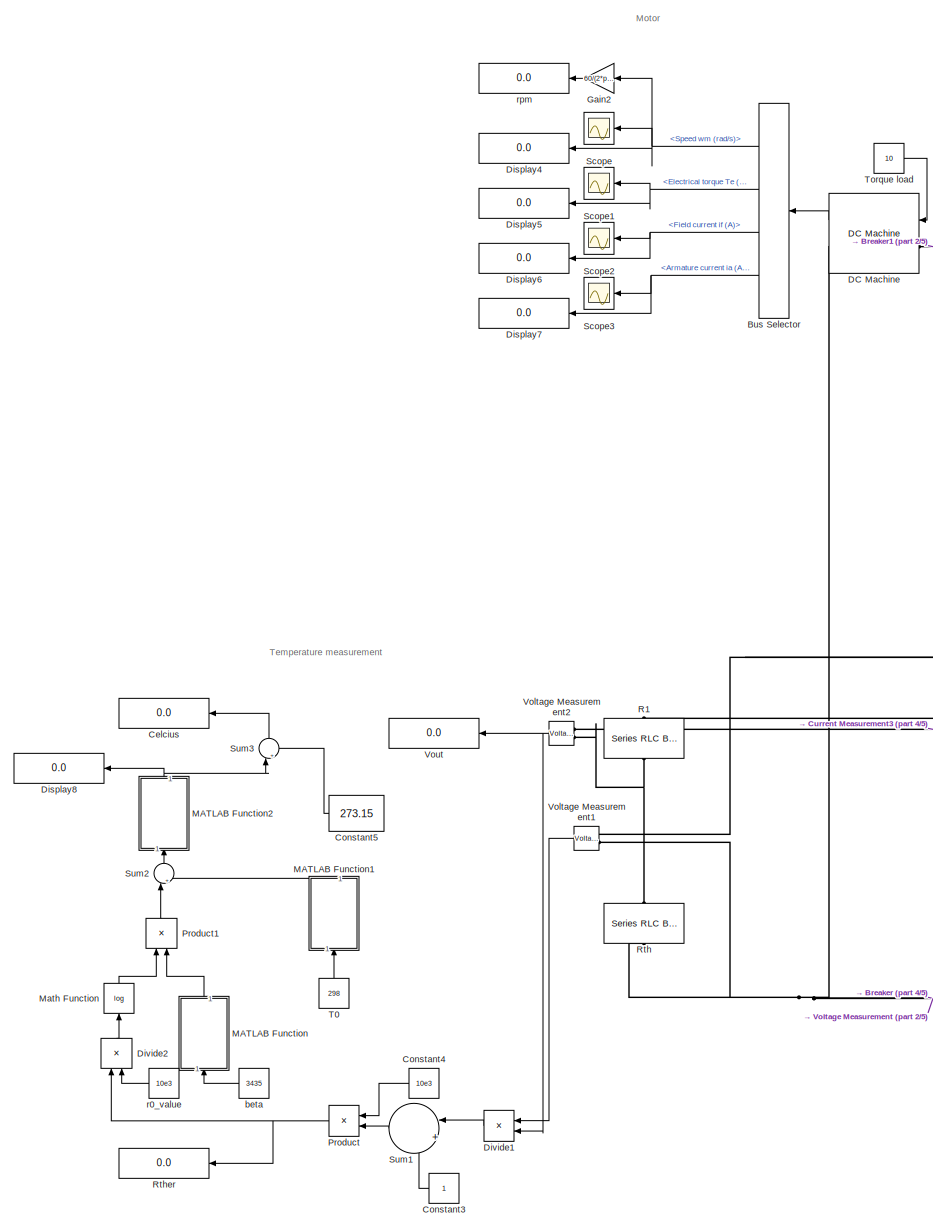
[diagram: root canvas - part 1/5, top left region]
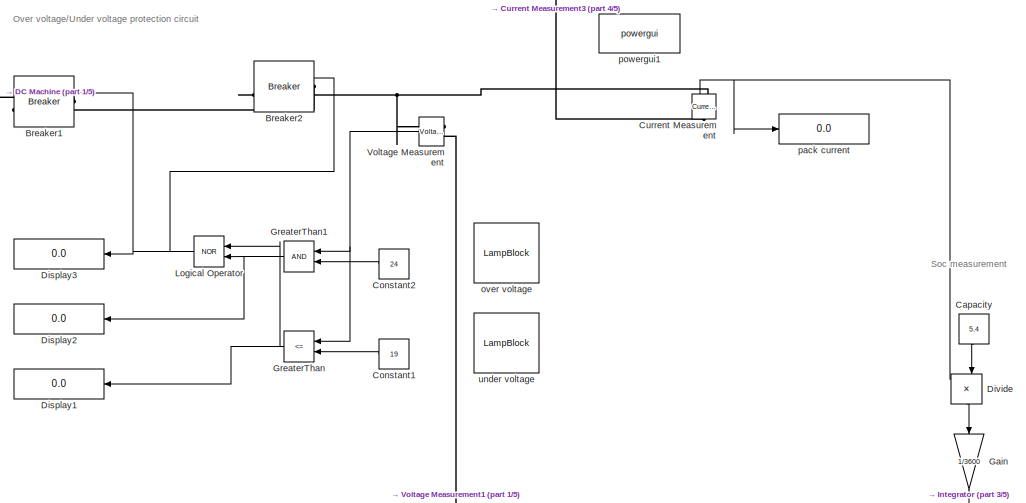
[diagram: root canvas - part 2/5, top right region]
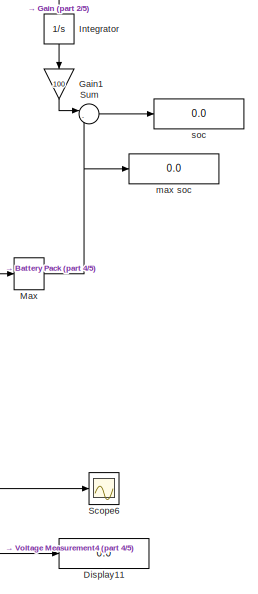
[diagram: root canvas - part 3/5, middle right region]
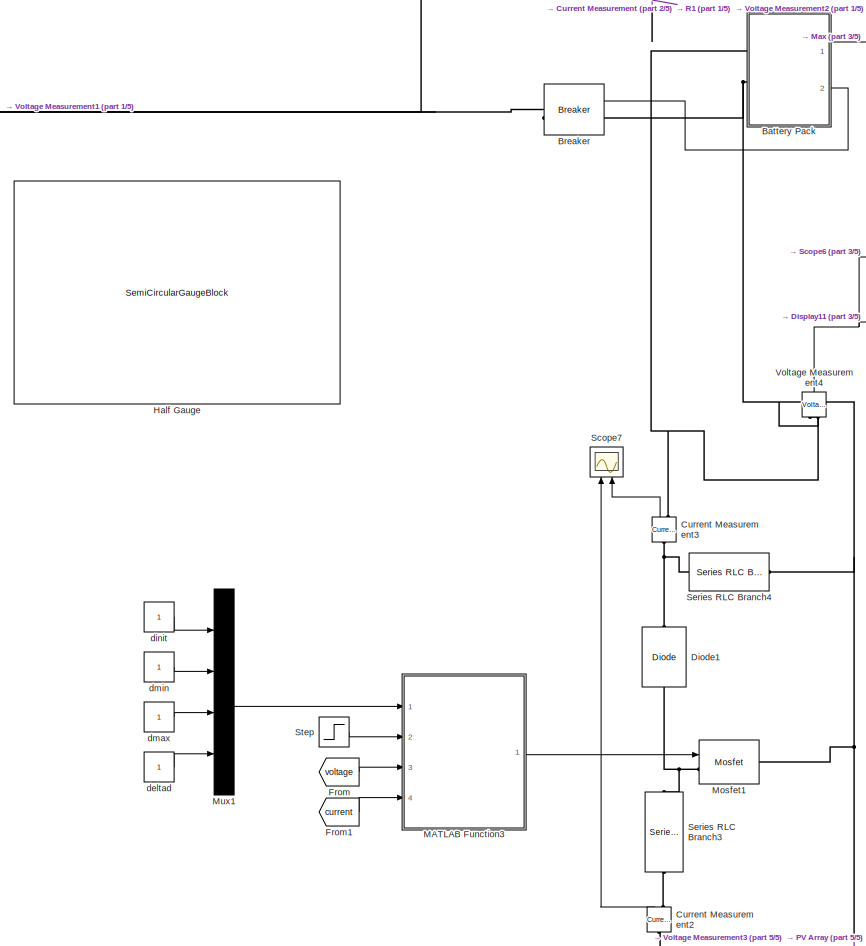
[diagram: root canvas - part 4/5, middle right region]
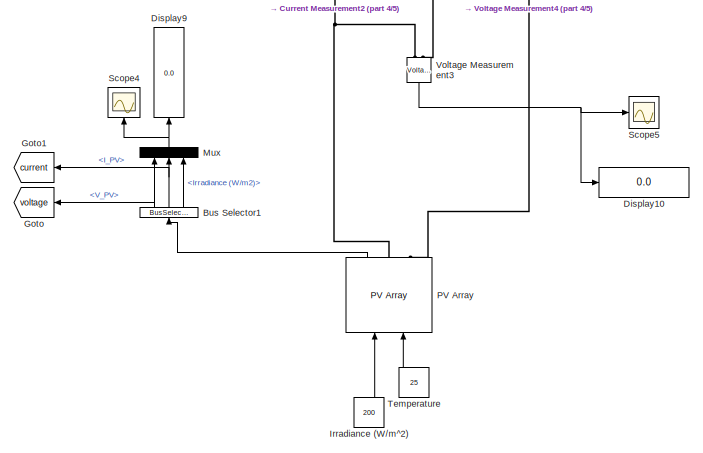
[diagram: root canvas - part 5/5, bottom right region]
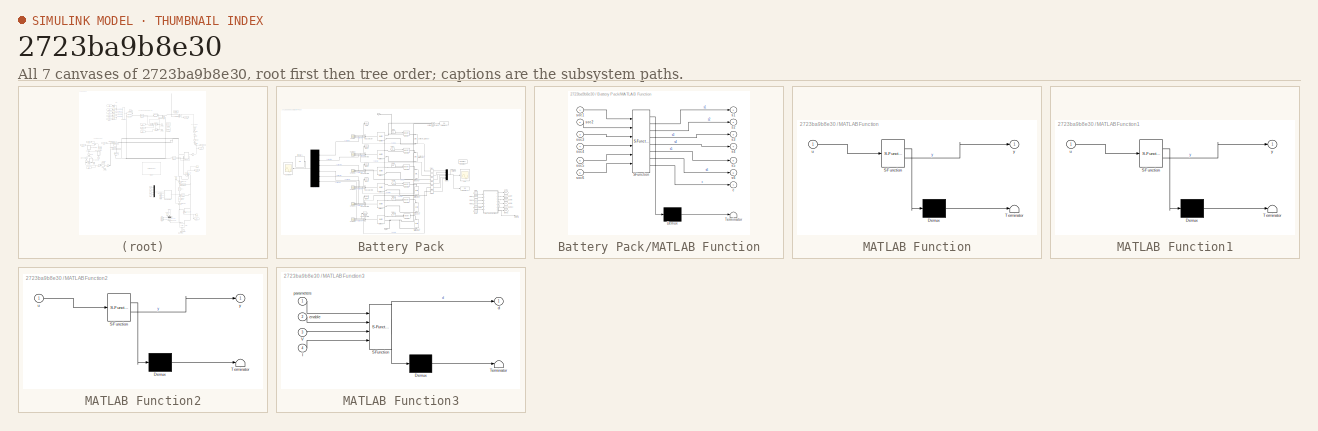
[diagram: thumbnail index - all 7 canvases of the model, root first then tree order]
MODEL slx_2723ba9b8e30
KIND model
CONFIG AbsTol = auto
CONFIG EnableMultiTasking = off
CONFIG FixedStep = auto
CONFIG MaxStep = auto
CONFIG MinStep = auto
CONFIG RelTol = 1e-3
CONFIG SampleTimeConstraint = Unconstrained
CONFIG SolverName = VariableStepAuto
CONFIG StartTime = 0.0
CONFIG StopTime = 3600*5
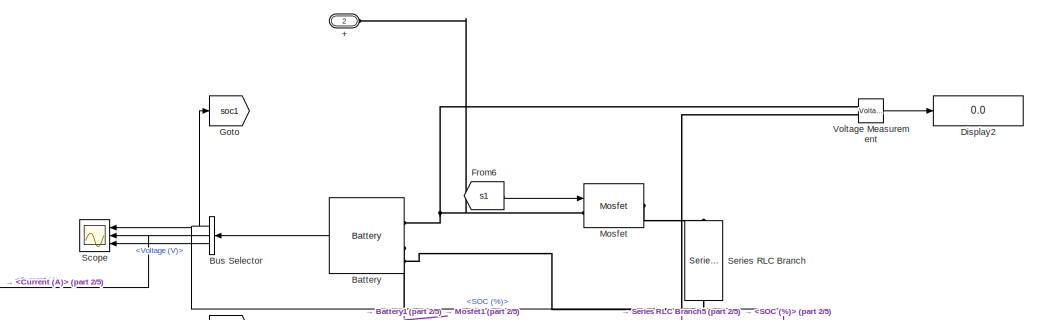
[diagram: Battery Pack - part 1/5, top center region]
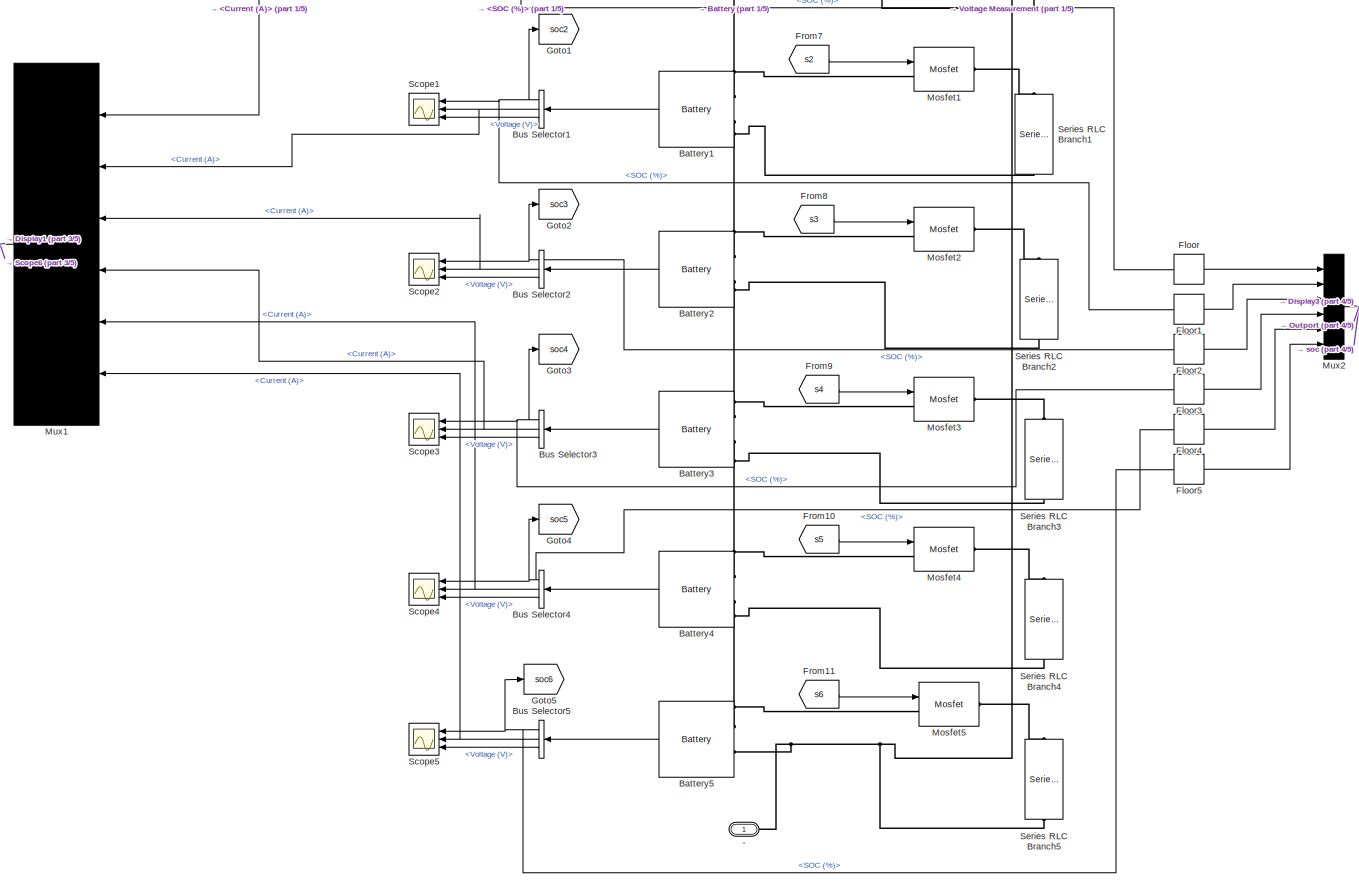
[diagram: Battery Pack - part 2/5, central region]
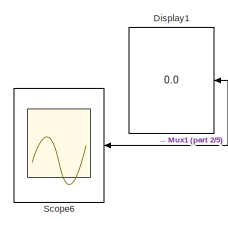
[diagram: Battery Pack - part 3/5, middle left region]
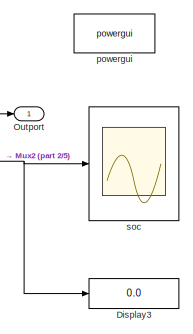
[diagram: Battery Pack - part 4/5, middle right region]
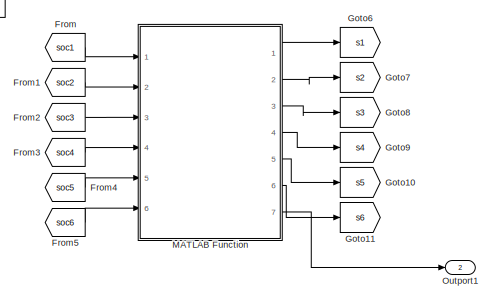
[diagram: Battery Pack - part 5/5, bottom right region]
BLOCK [SubSystem] Battery Pack
  Ports = [0, 2, 0, 0, 0, 2]
  RequestExecContextInheritance = off
BLOCK [PMIOPort] Battery Pack/+
  Port = 2
  Side = Left
BLOCK [PMIOPort] Battery Pack/-
  Side = Left
BLOCK [Reference] Battery Pack/Battery  REF=spsBatteryLib/Battery
  Ports = [0, 1, 0, 0, 0, 2]
  SourceBlock = spsBatteryLib/Battery
  SourceProductBaseCode = PS
  SourceType = Battery
BLOCK [Reference] Battery Pack/Battery1  REF=spsBatteryLib/Battery
  Ports = [0, 1, 0, 0, 0, 2]
  SourceBlock = spsBatteryLib/Battery
  SourceProductBaseCode = PS
  SourceType = Battery
BLOCK [Reference] Battery Pack/Battery2  REF=spsBatteryLib/Battery
  Ports = [0, 1, 0, 0, 0, 2]
  SourceBlock = spsBatteryLib/Battery
  SourceProductBaseCode = PS
  SourceType = Battery
BLOCK [Reference] Battery Pack/Battery3  REF=spsBatteryLib/Battery
  Ports = [0, 1, 0, 0, 0, 2]
  SourceBlock = spsBatteryLib/Battery
  SourceProductBaseCode = PS
  SourceType = Battery
BLOCK [Reference] Battery Pack/Battery4  REF=spsBatteryLib/Battery
  Ports = [0, 1, 0, 0, 0, 2]
  SourceBlock = spsBatteryLib/Battery
  SourceProductBaseCode = PS
  SourceType = Battery
BLOCK [Reference] Battery Pack/Battery5  REF=spsBatteryLib/Battery
  Ports = [0, 1, 0, 0, 0, 2]
  SourceBlock = spsBatteryLib/Battery
  SourceProductBaseCode = PS
  SourceType = Battery
BLOCK [BusSelector] Battery Pack/Bus Selector
  NameLocation = top
  OutputSignals = SOC (%),Current (A),Voltage (V)
  Ports = [1, 3]
BLOCK [BusSelector] Battery Pack/Bus Selector1
  NameLocation = top
  OutputSignals = SOC (%),Current (A),Voltage (V)
  Ports = [1, 3]
BLOCK [BusSelector] Battery Pack/Bus Selector2
  NameLocation = top
  OutputSignals = SOC (%),Current (A),Voltage (V)
  Ports = [1, 3]
BLOCK [BusSelector] Battery Pack/Bus Selector3
  NameLocation = top
  OutputSignals = SOC (%),Current (A),Voltage (V)
  Ports = [1, 3]
BLOCK [BusSelector] Battery Pack/Bus Selector4
  NameLocation = top
  OutputSignals = SOC (%),Current (A),Voltage (V)
  Ports = [1, 3]
BLOCK [BusSelector] Battery Pack/Bus Selector5
  NameLocation = top
  OutputSignals = SOC (%),Current (A),Voltage (V)
  Ports = [1, 3]
BLOCK [Display] Battery Pack/Display1
  Decimation = 1
  NameLocation = top
  Ports = [1]
BLOCK [Display] Battery Pack/Display2
  Decimation = 1
  Ports = [1]
BLOCK [Display] Battery Pack/Display3
  Decimation = 1
  Ports = [1]
BLOCK [Rounding] Battery Pack/Floor
BLOCK [Rounding] Battery Pack/Floor1
BLOCK [Rounding] Battery Pack/Floor2
BLOCK [Rounding] Battery Pack/Floor3
BLOCK [Rounding] Battery Pack/Floor4
BLOCK [Rounding] Battery Pack/Floor5
BLOCK [From] Battery Pack/From
  GotoTag = soc1
  TagVisibility = global
BLOCK [From] Battery Pack/From1
  GotoTag = soc2
BLOCK [From] Battery Pack/From10
  GotoTag = s5
BLOCK [From] Battery Pack/From11
  GotoTag = s6
BLOCK [From] Battery Pack/From2
  GotoTag = soc3
BLOCK [From] Battery Pack/From3
  GotoTag = soc4
BLOCK [From] Battery Pack/From4
  GotoTag = soc5
BLOCK [From] Battery Pack/From5
  GotoTag = soc6
BLOCK [From] Battery Pack/From6
  GotoTag = s1
BLOCK [From] Battery Pack/From7
  GotoTag = s2
BLOCK [From] Battery Pack/From8
  GotoTag = s3
BLOCK [From] Battery Pack/From9
  GotoTag = s4
BLOCK [Goto] Battery Pack/Goto
  GotoTag = soc1
  TagVisibility = global
BLOCK [Goto] Battery Pack/Goto1
  GotoTag = soc2
BLOCK [Goto] Battery Pack/Goto10
  GotoTag = s5
BLOCK [Goto] Battery Pack/Goto11
  GotoTag = s6
BLOCK [Goto] Battery Pack/Goto2
  GotoTag = soc3
BLOCK [Goto] Battery Pack/Goto3
  GotoTag = soc4
BLOCK [Goto] Battery Pack/Goto4
  GotoTag = soc5
BLOCK [Goto] Battery Pack/Goto5
  GotoTag = soc6
BLOCK [Goto] Battery Pack/Goto6
  GotoTag = s1
BLOCK [Goto] Battery Pack/Goto7
  GotoTag = s2
BLOCK [Goto] Battery Pack/Goto8
  GotoTag = s3
BLOCK [Goto] Battery Pack/Goto9
  GotoTag = s4
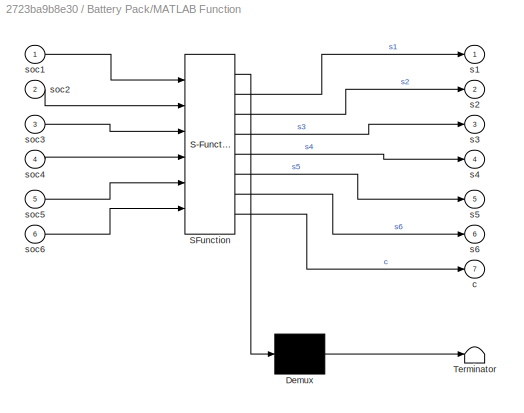
BLOCK [SubSystem] Battery Pack/MATLAB Function
  ErrorFcn = Stateflow.Translate.translate
  PermitHierarchicalResolution = ExplicitOnly
  Ports = [6, 7]
  RequestExecContextInheritance = off
  SFBlockType = MATLAB Function
  TreatAsAtomicUnit = on
BLOCK [Demux] Battery Pack/MATLAB Function/ Demux 
  Outputs = 1
  Ports = [1, 1]
BLOCK [S-Function] Battery Pack/MATLAB Function/ SFunction 
  EnableBusSupport = on
  FunctionName = sf_sfun
  PortCounts = [6 8]
  Ports = [6, 8]
  SFcnIsStateOwnerBlock = off
  SFunctionDeploymentMode = off
  Tag = Stateflow S-Function 2
BLOCK [Terminator] Battery Pack/MATLAB Function/ Terminator 
BLOCK [Outport] Battery Pack/MATLAB Function/c
  Port = 7
BLOCK [Outport] Battery Pack/MATLAB Function/s1
BLOCK [Outport] Battery Pack/MATLAB Function/s2
  Port = 2
BLOCK [Outport] Battery Pack/MATLAB Function/s3
  Port = 3
BLOCK [Outport] Battery Pack/MATLAB Function/s4
  Port = 4
BLOCK [Outport] Battery Pack/MATLAB Function/s5
  Port = 5
BLOCK [Outport] Battery Pack/MATLAB Function/s6
  Port = 6
BLOCK [Inport] Battery Pack/MATLAB Function/soc1
BLOCK [Inport] Battery Pack/MATLAB Function/soc2
  Port = 2
BLOCK [Inport] Battery Pack/MATLAB Function/soc3
  Port = 3
BLOCK [Inport] Battery Pack/MATLAB Function/soc4
  Port = 4
BLOCK [Inport] Battery Pack/MATLAB Function/soc5
  Port = 5
BLOCK [Inport] Battery Pack/MATLAB Function/soc6
  Port = 6
BLOCK [Reference] Battery Pack/Mosfet  REF=spsMosfetLib/Mosfet
  Ports = [1, 0, 0, 0, 0, 1, 1]
  SourceBlock = spsMosfetLib/Mosfet
  SourceProductBaseCode = PS
  SourceType = Mosfet
BLOCK [Reference] Battery Pack/Mosfet1  REF=spsMosfetLib/Mosfet
  Ports = [1, 0, 0, 0, 0, 1, 1]
  SourceBlock = spsMosfetLib/Mosfet
  SourceProductBaseCode = PS
  SourceType = Mosfet
BLOCK [Reference] Battery Pack/Mosfet2  REF=spsMosfetLib/Mosfet
  Ports = [1, 0, 0, 0, 0, 1, 1]
  SourceBlock = spsMosfetLib/Mosfet
  SourceProductBaseCode = PS
  SourceType = Mosfet
BLOCK [Reference] Battery Pack/Mosfet3  REF=spsMosfetLib/Mosfet
  Ports = [1, 0, 0, 0, 0, 1, 1]
  SourceBlock = spsMosfetLib/Mosfet
  SourceProductBaseCode = PS
  SourceType = Mosfet
BLOCK [Reference] Battery Pack/Mosfet4  REF=spsMosfetLib/Mosfet
  Ports = [1, 0, 0, 0, 0, 1, 1]
  SourceBlock = spsMosfetLib/Mosfet
  SourceProductBaseCode = PS
  SourceType = Mosfet
BLOCK [Reference] Battery Pack/Mosfet5  REF=spsMosfetLib/Mosfet
  Ports = [1, 0, 0, 0, 0, 1, 1]
  SourceBlock = spsMosfetLib/Mosfet
  SourceProductBaseCode = PS
  SourceType = Mosfet
BLOCK [Mux] Battery Pack/Mux1
  DisplayOption = bar
  Inputs = 6
  NameLocation = top
  Ports = [6, 1]
BLOCK [Mux] Battery Pack/Mux2
  DisplayOption = bar
  Inputs = 6
  Ports = [6, 1]
BLOCK [Outport] Battery Pack/Outport
BLOCK [Outport] Battery Pack/Outport1
  Port = 2
BLOCK [Scope] Battery Pack/Scope
  Floating = off
  NameLocation = top
  NumInputPorts = 3
  Ports = [3]
  ScopeSpecificationString = Simulink.scopes.TimeScopeBlockCfg('CurrentConfiguration', extmgr.ConfigurationSet(extmgr.Configuration('Core','General UI',true),extmgr.Configuration('Core','Source UI',true),extmgr.Configuration('Sources','WiredSimulink',true),extmgr.Configuration('Visuals','Time Domain',true,'SerializedDisplays',{struct('MinYLimReal','50.96114','MaxYLimReal','70.96114','YLabelReal','','MinYLimMag','50.96114','Ma...<+2670ch>
BLOCK [Scope] Battery Pack/Scope1
  Floating = off
  NameLocation = top
  NumInputPorts = 3
  Ports = [3]
  ScopeSpecificationString = Simulink.scopes.TimeScopeBlockCfg('CurrentConfiguration', extmgr.ConfigurationSet(extmgr.Configuration('Core','General UI',true),extmgr.Configuration('Core','Source UI',true),extmgr.Configuration('Sources','WiredSimulink',true,'DataLoggingVariableName','ScopeData1'),extmgr.Configuration('Visuals','Time Domain',true,'SerializedDisplays',{struct('MinYLimReal','60.68016','MaxYLimReal','63.25776','YLa...<+2690ch>
BLOCK [Scope] Battery Pack/Scope2
  Floating = off
  NameLocation = top
  NumInputPorts = 3
  Ports = [3]
  ScopeSpecificationString = Simulink.scopes.TimeScopeBlockCfg('CurrentConfiguration', extmgr.ConfigurationSet(extmgr.Configuration('Core','General UI',true),extmgr.Configuration('Core','Source UI',true),extmgr.Configuration('Sources','WiredSimulink',true,'DataLoggingVariableName','ScopeData2'),extmgr.Configuration('Visuals','Time Domain',true,'SerializedDisplays',{struct('MinYLimReal','-10','MaxYLimReal','10','YLabelReal',''...<+2771ch>
BLOCK [Scope] Battery Pack/Scope3
  Floating = off
  NameLocation = top
  NumInputPorts = 3
  Ports = [3]
  ScopeSpecificationString = Simulink.scopes.TimeScopeBlockCfg('CurrentConfiguration', extmgr.ConfigurationSet(extmgr.Configuration('Core','General UI',true),extmgr.Configuration('Core','Source UI',true),extmgr.Configuration('Sources','WiredSimulink',true,'DataLoggingVariableName','ScopeData3'),extmgr.Configuration('Visuals','Time Domain',true,'SerializedDisplays',{struct('MinYLimReal','-10','MaxYLimReal','10','YLabelReal',''...<+2771ch>
BLOCK [Scope] Battery Pack/Scope4
  Floating = off
  NameLocation = top
  NumInputPorts = 3
  Ports = [3]
  ScopeSpecificationString = Simulink.scopes.TimeScopeBlockCfg('CurrentConfiguration', extmgr.ConfigurationSet(extmgr.Configuration('Core','General UI',true),extmgr.Configuration('Core','Source UI',true),extmgr.Configuration('Sources','WiredSimulink',true,'DataLoggingVariableName','ScopeData4'),extmgr.Configuration('Visuals','Time Domain',true,'SerializedDisplays',{struct('MinYLimReal','-10','MaxYLimReal','10','YLabelReal',''...<+2771ch>
BLOCK [Scope] Battery Pack/Scope5
  Floating = off
  NameLocation = top
  NumInputPorts = 3
  Ports = [3]
  ScopeSpecificationString = Simulink.scopes.TimeScopeBlockCfg('CurrentConfiguration', extmgr.ConfigurationSet(extmgr.Configuration('Core','General UI',true),extmgr.Configuration('Core','Source UI',true),extmgr.Configuration('Sources','WiredSimulink',true,'DataLoggingVariableName','ScopeData5'),extmgr.Configuration('Visuals','Time Domain',true,'SerializedDisplays',{struct('MinYLimReal','-10','MaxYLimReal','10','YLabelReal',''...<+2771ch>
BLOCK [Scope] Battery Pack/Scope6
  Floating = off
  NameLocation = top
  NumInputPorts = 1
  Ports = [1]
  ScopeSpecificationString = Simulink.scopes.TimeScopeBlockCfg('CurrentConfiguration', extmgr.ConfigurationSet(extmgr.Configuration('Core','General UI',true),extmgr.Configuration('Core','Source UI',true),extmgr.Configuration('Sources','WiredSimulink',true,'DataLoggingVariableName','ScopeData1'),extmgr.Configuration('Visuals','Time Domain',true,'SerializedDisplays',{struct('MinYLimReal','57.62433','MaxYLimReal','66.12254','YLa...<+1579ch>
BLOCK [Reference] Battery Pack/Series RLC Branch  REF=spsSeriesRLCBranchLib/Series RLC Branch
  NameLocation = left
  Ports = [0, 0, 0, 0, 0, 1, 1]
  SourceBlock = spsSeriesRLCBranchLib/Series RLC Branch
  SourceProductBaseCode = PS
  SourceType = Series RLC Branch
BLOCK [Reference] Battery Pack/Series RLC Branch1  REF=spsSeriesRLCBranchLib/Series RLC Branch
  NameLocation = left
  Ports = [0, 0, 0, 0, 0, 1, 1]
  SourceBlock = spsSeriesRLCBranchLib/Series RLC Branch
  SourceProductBaseCode = PS
  SourceType = Series RLC Branch
BLOCK [Reference] Battery Pack/Series RLC Branch2  REF=spsSeriesRLCBranchLib/Series RLC Branch
  NameLocation = left
  Ports = [0, 0, 0, 0, 0, 1, 1]
  SourceBlock = spsSeriesRLCBranchLib/Series RLC Branch
  SourceProductBaseCode = PS
  SourceType = Series RLC Branch
BLOCK [Reference] Battery Pack/Series RLC Branch3  REF=spsSeriesRLCBranchLib/Series RLC Branch
  NameLocation = left
  Ports = [0, 0, 0, 0, 0, 1, 1]
  SourceBlock = spsSeriesRLCBranchLib/Series RLC Branch
  SourceProductBaseCode = PS
  SourceType = Series RLC Branch
BLOCK [Reference] Battery Pack/Series RLC Branch4  REF=spsSeriesRLCBranchLib/Series RLC Branch
  NameLocation = left
  Ports = [0, 0, 0, 0, 0, 1, 1]
  SourceBlock = spsSeriesRLCBranchLib/Series RLC Branch
  SourceProductBaseCode = PS
  SourceType = Series RLC Branch
BLOCK [Reference] Battery Pack/Series RLC Branch5  REF=spsSeriesRLCBranchLib/Series RLC Branch
  NameLocation = left
  Ports = [0, 0, 0, 0, 0, 1, 1]
  SourceBlock = spsSeriesRLCBranchLib/Series RLC Branch
  SourceProductBaseCode = PS
  SourceType = Series RLC Branch
BLOCK [Reference] Battery Pack/Voltage Measurement  REF=spsVoltageMeasurementLib/Voltage Measurement
  Ports = [0, 1, 0, 0, 0, 2]
  SourceBlock = spsVoltageMeasurementLib/Voltage Measurement
  SourceProductBaseCode = PS
  SourceType = Voltage Measurement
  UserDataPersistent = on
BLOCK [Reference] Battery Pack/powergui  REF=spspowerguiLib/powergui
  Ports = []
  Priority = 1
  SourceBlock = spspowerguiLib/powergui
  SourceProductBaseCode = PS
  SourceType = PSB option menu block
BLOCK [Scope] Battery Pack/soc
  Floating = off
  NumInputPorts = 1
  Ports = [1]
  ScopeSpecificationString = Simulink.scopes.TimeScopeBlockCfg('CurrentConfiguration', extmgr.ConfigurationSet(extmgr.Configuration('Core','General UI',true),extmgr.Configuration('Core','Source UI',true),extmgr.Configuration('Sources','WiredSimulink',true,'DataLoggingVariableName','ScopeData7'),extmgr.Configuration('Visuals','Time Domain',true,'SerializedDisplays',{struct('MinYLimReal','61.42761','MaxYLimReal','66.50804','YLa...<+1582ch>
BLOCK [Reference] Breaker  REF=spsBreakerLib/Breaker
  NameLocation = top
  Ports = [1, 0, 0, 0, 0, 1, 1]
  SourceBlock = spsBreakerLib/Breaker
  SourceProductBaseCode = PS
  SourceType = Breaker
BLOCK [Reference] Breaker1  REF=spsBreakerLib/Breaker
  NameLocation = top
  Ports = [1, 0, 0, 0, 0, 1, 1]
  SourceBlock = spsBreakerLib/Breaker
  SourceProductBaseCode = PS
  SourceType = Breaker
BLOCK [Reference] Breaker2  REF=spsBreakerLib/Breaker
  NameLocation = top
  Ports = [1, 0, 0, 0, 0, 1, 1]
  SourceBlock = spsBreakerLib/Breaker
  SourceProductBaseCode = PS
  SourceType = Breaker
BLOCK [BusSelector] Bus Selector
  NameLocation = top
  OutputSignals = Speed wm (rad/s),Electrical torque Te (n m),Field current if (A),Armature current ia (A)
  Ports = [1, 4]
BLOCK [BusSelector] Bus Selector1
  NameLocation = right
  OutputSignals = V_PV,I_PV,Irradiance (W/m2)
  Ports = [1, 3]
BLOCK [Constant] Capacity
  NameLocation = left
  Value = 5.4
BLOCK [Display] Celcius
  Decimation = 1
  Ports = [1]
BLOCK [Constant] Constant1
  NameLocation = top
  Value = 19
BLOCK [Constant] Constant2
  NameLocation = top
  Value = 24
BLOCK [Constant] Constant3
  NameLocation = top
BLOCK [Constant] Constant4
  NameLocation = top
  Value = 10e3
BLOCK [Constant] Constant5
  NameLocation = top
  Value = 273.15
BLOCK [Reference] Current Measurement  REF=spsCurrentMeasurementLib/Current Measurement
  NameLocation = left
  Ports = [0, 1, 0, 0, 0, 1, 1]
  SourceBlock = spsCurrentMeasurementLib/Current Measurement
  SourceProductBaseCode = PS
  SourceType = Current Measurement
  UserDataPersistent = on
BLOCK [Reference] Current Measurement2  REF=spsCurrentMeasurementLib/Current Measurement
  NameLocation = right
  Ports = [0, 1, 0, 0, 0, 1, 1]
  SourceBlock = spsCurrentMeasurementLib/Current Measurement
  SourceProductBaseCode = PS
  SourceType = Current Measurement
  UserDataPersistent = on
BLOCK [Reference] Current Measurement3  REF=spsCurrentMeasurementLib/Current Measurement
  NameLocation = right
  Ports = [0, 1, 0, 0, 0, 1, 1]
  SourceBlock = spsCurrentMeasurementLib/Current Measurement
  SourceProductBaseCode = PS
  SourceType = Current Measurement
  UserDataPersistent = on
BLOCK [Reference] DC Machine  REF=spsDCMachineLib/DC Machine
  Ports = [1, 1, 0, 0, 0, 1, 1]
  SourceBlock = spsDCMachineLib/DC Machine
  SourceProductBaseCode = PS
  SourceType = DC machine
BLOCK [Reference] Diode1  REF=spsDiodeLib/Diode
  NameLocation = right
  Ports = [0, 0, 0, 0, 0, 1, 1]
  SourceBlock = spsDiodeLib/Diode
  SourceProductBaseCode = PS
  SourceType = Diode
BLOCK [Display] Display1
  Decimation = 1
  NameLocation = top
  Ports = [1]
BLOCK [Display] Display10
  Decimation = 1
  Ports = [1]
BLOCK [Display] Display11
  Decimation = 1
  Ports = [1]
BLOCK [Display] Display2
  Decimation = 1
  NameLocation = top
  Ports = [1]
BLOCK [Display] Display3
  Decimation = 1
  NameLocation = top
  Ports = [1]
BLOCK [Display] Display4
  Decimation = 1
  NameLocation = top
  Ports = [1]
BLOCK [Display] Display5
  Decimation = 1
  NameLocation = top
  Ports = [1]
BLOCK [Display] Display6
  Decimation = 1
  NameLocation = top
  Ports = [1]
BLOCK [Display] Display7
  Decimation = 1
  NameLocation = top
  Ports = [1]
BLOCK [Display] Display8
  Decimation = 1
  Ports = [1]
BLOCK [Display] Display9
  Decimation = 1
  NameLocation = right
  Ports = [1]
BLOCK [Product] Divide
  Inputs = */
  NameLocation = left
  Ports = [2, 1]
BLOCK [Product] Divide1
  Inputs = */
  NameLocation = top
  Ports = [2, 1]
BLOCK [Product] Divide2
  Inputs = */
  NameLocation = right
  Ports = [2, 1]
BLOCK [From] From
  GotoTag = voltage
BLOCK [From] From1
  GotoTag = current
BLOCK [Gain] Gain
  Gain = 1/3600
  NameLocation = left
BLOCK [Gain] Gain1
  Gain = 100
  NameLocation = left
BLOCK [Gain] Gain2
  Gain = 60/(2*pi)
  NameLocation = top
BLOCK [Goto] Goto
  GotoTag = voltage
  NameLocation = top
BLOCK [Goto] Goto1
  GotoTag = current
  NameLocation = top
BLOCK [RelationalOperator] GreaterThan
  InputSameDT = off
  NameLocation = top
  Operator = <=
  OutDataTypeStr = boolean
  Ports = [2, 1]
  RndMeth = Simplest
BLOCK [RelationalOperator] GreaterThan1
  InputSameDT = off
  NameLocation = top
  OutDataTypeStr = boolean
  Ports = [2, 1]
  RndMeth = Simplest
BLOCK [SemiCircularGaugeBlock] Half Gauge
BLOCK [Integrator] Integrator
  NameLocation = left
  Ports = [1, 1]
BLOCK [Constant] Irradiance (W//m^2)
  NameLocation = top
  Value = 200
BLOCK [Logic] Logical Operator
  AllPortsSameDT = off
  NameLocation = top
  Operator = NOR
  OutDataTypeStr = boolean
  Ports = [2, 1]
BLOCK [SubSystem] MATLAB Function
  ErrorFcn = Stateflow.Translate.translate
  NameLocation = right
  PermitHierarchicalResolution = ExplicitOnly
  Ports = [1, 1]
  RequestExecContextInheritance = off
  SFBlockType = MATLAB Function
  TreatAsAtomicUnit = on
BLOCK [Demux] MATLAB Function/ Demux 
  Outputs = 1
  Ports = [1, 1]
BLOCK [S-Function] MATLAB Function/ SFunction 
  EnableBusSupport = on
  FunctionName = sf_sfun
  PortCounts = [1 2]
  Ports = [1, 2]
  SFcnIsStateOwnerBlock = off
  SFunctionDeploymentMode = off
  Tag = Stateflow S-Function 1
BLOCK [Terminator] MATLAB Function/ Terminator 
BLOCK [Inport] MATLAB Function/u
BLOCK [Outport] MATLAB Function/y
BLOCK [SubSystem] MATLAB Function1
  ErrorFcn = Stateflow.Translate.translate
  NameLocation = right
  PermitHierarchicalResolution = ExplicitOnly
  Ports = [1, 1]
  RequestExecContextInheritance = off
  SFBlockType = MATLAB Function
  TreatAsAtomicUnit = on
BLOCK [Demux] MATLAB Function1/ Demux 
  Outputs = 1
  Ports = [1, 1]
BLOCK [S-Function] MATLAB Function1/ SFunction 
  EnableBusSupport = on
  FunctionName = sf_sfun
  PortCounts = [1 2]
  Ports = [1, 2]
  SFcnIsStateOwnerBlock = off
  SFunctionDeploymentMode = off
  Tag = Stateflow S-Function 3
BLOCK [Terminator] MATLAB Function1/ Terminator 
BLOCK [Inport] MATLAB Function1/u
BLOCK [Outport] MATLAB Function1/y
BLOCK [SubSystem] MATLAB Function2
  ErrorFcn = Stateflow.Translate.translate
  NameLocation = right
  PermitHierarchicalResolution = ExplicitOnly
  Ports = [1, 1]
  RequestExecContextInheritance = off
  SFBlockType = MATLAB Function
  TreatAsAtomicUnit = on
BLOCK [Demux] MATLAB Function2/ Demux 
  Outputs = 1
  Ports = [1, 1]
BLOCK [S-Function] MATLAB Function2/ SFunction 
  EnableBusSupport = on
  FunctionName = sf_sfun
  PortCounts = [1 2]
  Ports = [1, 2]
  SFcnIsStateOwnerBlock = off
  SFunctionDeploymentMode = off
  Tag = Stateflow S-Function 4
BLOCK [Terminator] MATLAB Function2/ Terminator 
BLOCK [Inport] MATLAB Function2/u
BLOCK [Outport] MATLAB Function2/y
BLOCK [SubSystem] MATLAB Function3
  ErrorFcn = Stateflow.Translate.translate
  PermitHierarchicalResolution = ExplicitOnly
  Ports = [4, 1]
  RequestExecContextInheritance = off
  SFBlockType = MATLAB Function
  TreatAsAtomicUnit = on
BLOCK [Demux] MATLAB Function3/ Demux 
  Outputs = 1
  Ports = [1, 1]
BLOCK [S-Function] MATLAB Function3/ SFunction 
  EnableBusSupport = on
  FunctionName = sf_sfun
  PortCounts = [4 2]
  Ports = [4, 2]
  SFcnIsStateOwnerBlock = off
  SFunctionDeploymentMode = off
  Tag = Stateflow S-Function 5
BLOCK [Terminator] MATLAB Function3/ Terminator 
BLOCK [Inport] MATLAB Function3/I
  Port = 4
BLOCK [Inport] MATLAB Function3/V
  Port = 3
BLOCK [Outport] MATLAB Function3/d
BLOCK [Inport] MATLAB Function3/enable
  Port = 2
BLOCK [Inport] MATLAB Function3/parameters
BLOCK [Math] Math Function
  NameLocation = right
  Operator = log
  Ports = [1, 1]
BLOCK [MinMax] Max
  Function = max
  Ports = [1, 1]
BLOCK [Reference] Mosfet1  REF=spsMosfetLib/Mosfet
  Ports = [1, 0, 0, 0, 0, 1, 1]
  SourceBlock = spsMosfetLib/Mosfet
  SourceProductBaseCode = PS
  SourceType = Mosfet
BLOCK [Mux] Mux
  DisplayOption = bar
  Inputs = 3
  NameLocation = right
  Ports = [3, 1]
BLOCK [Mux] Mux1
  DisplayOption = bar
  Ports = [4, 1]
BLOCK [Reference] PV Array  REF=spsPVArrayLib/PV Array
  NameLocation = right
  Ports = [2, 1, 0, 0, 0, 0, 2]
  SourceBlock = spsPVArrayLib/PV Array
  SourceProductBaseCode = PS
  SourceType = PV array
BLOCK [Product] Product
  NameLocation = top
  Ports = [2, 1]
BLOCK [Product] Product1
  NameLocation = right
  Ports = [2, 1]
BLOCK [Reference] R1  REF=spsSeriesRLCBranchLib/Series RLC Branch
  NameLocation = top
  Ports = [0, 0, 0, 0, 0, 1, 1]
  SourceBlock = spsSeriesRLCBranchLib/Series RLC Branch
  SourceProductBaseCode = PS
  SourceType = Series RLC Branch
BLOCK [Reference] Rth  REF=spsSeriesRLCBranchLib/Series RLC Branch
  NameLocation = top
  Ports = [0, 0, 0, 0, 0, 1, 1]
  SourceBlock = spsSeriesRLCBranchLib/Series RLC Branch
  SourceProductBaseCode = PS
  SourceType = Series RLC Branch
BLOCK [Display] Rther
  Decimation = 1
  Format = long
  NameLocation = top
  Ports = [1]
BLOCK [Scope] Scope
  Floating = off
  NameLocation = top
  NumInputPorts = 1
  Ports = [1]
  ScopeSpecificationString = Simulink.scopes.TimeScopeBlockCfg('CurrentConfiguration', extmgr.ConfigurationSet(extmgr.Configuration('Core','General UI',true),extmgr.Configuration('Core','Source UI',true),extmgr.Configuration('Sources','WiredSimulink',true,'DataLoggingVariableName','ScopeData1'),extmgr.Configuration('Visuals','Time Domain',true,'SerializedDisplays',{struct('MinYLimReal','-2.67095','MaxYLimReal','34.02084','YLa...<+1452ch>
BLOCK [Scope] Scope1
  Floating = off
  NameLocation = top
  NumInputPorts = 1
  Ports = [1]
  ScopeSpecificationString = Simulink.scopes.TimeScopeBlockCfg('CurrentConfiguration', extmgr.ConfigurationSet(extmgr.Configuration('Core','General UI',true),extmgr.Configuration('Core','Source UI',true),extmgr.Configuration('Sources','WiredSimulink',true,'DataLoggingVariableName','ScopeData2'),extmgr.Configuration('Visuals','Time Domain',true),extmgr.Configuration('Tools','Plot Navigation',true),extmgr.Configuration('Tools',...<+40ch>
BLOCK [Scope] Scope2
  Floating = off
  NameLocation = top
  NumInputPorts = 1
  Ports = [1]
  ScopeSpecificationString = Simulink.scopes.TimeScopeBlockCfg('CurrentConfiguration', extmgr.ConfigurationSet(extmgr.Configuration('Core','General UI',true),extmgr.Configuration('Core','Source UI',true),extmgr.Configuration('Sources','WiredSimulink',true,'DataLoggingVariableName','ScopeData3'),extmgr.Configuration('Visuals','Time Domain',true),extmgr.Configuration('Tools','Plot Navigation',true),extmgr.Configuration('Tools',...<+40ch>
BLOCK [Scope] Scope3
  Floating = off
  NameLocation = top
  NumInputPorts = 1
  Ports = [1]
  ScopeSpecificationString = Simulink.scopes.TimeScopeBlockCfg('CurrentConfiguration', extmgr.ConfigurationSet(extmgr.Configuration('Core','General UI',true),extmgr.Configuration('Core','Source UI',true),extmgr.Configuration('Sources','WiredSimulink',true,'DataLoggingVariableName','ScopeData4'),extmgr.Configuration('Visuals','Time Domain',true),extmgr.Configuration('Tools','Plot Navigation',true),extmgr.Configuration('Tools',...<+58ch>
BLOCK [Scope] Scope4
  Floating = off
  NameLocation = right
  NumInputPorts = 1
  Ports = [1]
  ScopeSpecificationString = Simulink.scopes.TimeScopeBlockCfg('CurrentConfiguration', extmgr.ConfigurationSet(extmgr.Configuration('Core','General UI',true),extmgr.Configuration('Core','Source UI',true),extmgr.Configuration('Sources','WiredSimulink',true,'DataLoggingVariableName','ScopeData1'),extmgr.Configuration('Visuals','Time Domain',true),extmgr.Configuration('Tools','Plot Navigation',true),extmgr.Configuration('Tools',...<+40ch>
BLOCK [Scope] Scope5
  Floating = off
  NumInputPorts = 1
  Ports = [1]
  ScopeSpecificationString = Simulink.scopes.TimeScopeBlockCfg('CurrentConfiguration', extmgr.ConfigurationSet(extmgr.Configuration('Core','General UI',true),extmgr.Configuration('Core','Source UI',true),extmgr.Configuration('Sources','WiredSimulink',true,'DataLoggingVariableName','ScopeData2'),extmgr.Configuration('Visuals','Time Domain',true),extmgr.Configuration('Tools','Plot Navigation',true),extmgr.Configuration('Tools',...<+40ch>
BLOCK [Scope] Scope6
  Floating = off
  NumInputPorts = 1
  Ports = [1]
  ScopeSpecificationString = Simulink.scopes.TimeScopeBlockCfg('CurrentConfiguration', extmgr.ConfigurationSet(extmgr.Configuration('Core','General UI',true),extmgr.Configuration('Core','Source UI',true),extmgr.Configuration('Sources','WiredSimulink',true,'DataLoggingVariableName','ScopeData3'),extmgr.Configuration('Visuals','Time Domain',true),extmgr.Configuration('Tools','Plot Navigation',true),extmgr.Configuration('Tools',...<+40ch>
BLOCK [Scope] Scope7
  Floating = off
  NameLocation = right
  NumInputPorts = 2
  Ports = [2]
  ScopeSpecificationString = Simulink.scopes.TimeScopeBlockCfg('CurrentConfiguration', extmgr.ConfigurationSet(extmgr.Configuration('Core','General UI',true),extmgr.Configuration('Core','Source UI',true),extmgr.Configuration('Sources','WiredSimulink',true,'DataLoggingVariableName','ScopeData4'),extmgr.Configuration('Visuals','Time Domain',true,'SerializedDisplays',{struct('MinYLimReal','-10','MaxYLimReal','10','YLabelReal',''...<+2092ch>
BLOCK [Reference] Series RLC Branch3  REF=spsSeriesRLCBranchLib/Series RLC Branch
  NameLocation = right
  Ports = [0, 0, 0, 0, 0, 1, 1]
  SourceBlock = spsSeriesRLCBranchLib/Series RLC Branch
  SourceProductBaseCode = PS
  SourceType = Series RLC Branch
BLOCK [Reference] Series RLC Branch4  REF=spsSeriesRLCBranchLib/Series RLC Branch
  Ports = [0, 0, 0, 0, 0, 1, 1]
  SourceBlock = spsSeriesRLCBranchLib/Series RLC Branch
  SourceProductBaseCode = PS
  SourceType = Series RLC Branch
BLOCK [Step] Step
  SampleTime = 0
  Time = 0.0001
BLOCK [Sum] Sum
  Inputs = |-+
  Ports = [2, 1]
BLOCK [Sum] Sum1
  Inputs = |+-
  NameLocation = top
  Ports = [2, 1]
BLOCK [Sum] Sum2
  Inputs = |++
  NameLocation = right
  Ports = [2, 1]
BLOCK [Sum] Sum3
  Inputs = |+-
  NameLocation = right
  Ports = [2, 1]
BLOCK [Constant] T0
  NameLocation = right
  Value = 298
BLOCK [Constant] Temperature
  NameLocation = right
  Value = 25
BLOCK [Constant] Torque load
  Value = 10
BLOCK [Reference] Voltage Measurement  REF=spsVoltageMeasurementLib/Voltage Measurement
  NameLocation = top
  Ports = [0, 1, 0, 0, 0, 2]
  SourceBlock = spsVoltageMeasurementLib/Voltage Measurement
  SourceProductBaseCode = PS
  SourceType = Voltage Measurement
  UserDataPersistent = on
BLOCK [Reference] Voltage Measurement1  REF=spsVoltageMeasurementLib/Voltage Measurement
  Ports = [0, 1, 0, 0, 0, 2]
  SourceBlock = spsVoltageMeasurementLib/Voltage Measurement
  SourceProductBaseCode = PS
  SourceType = Voltage Measurement
  UserDataPersistent = on
BLOCK [Reference] Voltage Measurement2  REF=spsVoltageMeasurementLib/Voltage Measurement
  Ports = [0, 1, 0, 0, 0, 2]
  SourceBlock = spsVoltageMeasurementLib/Voltage Measurement
  SourceProductBaseCode = PS
  SourceType = Voltage Measurement
  UserDataPersistent = on
BLOCK [Reference] Voltage Measurement3  REF=spsVoltageMeasurementLib/Voltage Measurement
  NameLocation = right
  Ports = [0, 1, 0, 0, 0, 2]
  SourceBlock = spsVoltageMeasurementLib/Voltage Measurement
  SourceProductBaseCode = PS
  SourceType = Voltage Measurement
  UserDataPersistent = on
BLOCK [Reference] Voltage Measurement4  REF=spsVoltageMeasurementLib/Voltage Measurement
  NameLocation = right
  Ports = [0, 1, 0, 0, 0, 2]
  SourceBlock = spsVoltageMeasurementLib/Voltage Measurement
  SourceProductBaseCode = PS
  SourceType = Voltage Measurement
  UserDataPersistent = on
BLOCK [Display] Vout
  Decimation = 1
  Format = long
  Ports = [1]
BLOCK [Constant] beta
  NameLocation = top
  Value = 3435
BLOCK [Constant] deltad
BLOCK [Constant] dinit
BLOCK [Constant] dmax
BLOCK [Constant] dmin
BLOCK [Display] max soc
  Decimation = 1
  Ports = [1]
BLOCK [LampBlock] over voltage
BLOCK [Display] pack current
  Decimation = 1
  Ports = [1]
BLOCK [Reference] powergui1  REF=spspowerguiLib/powergui
  Ports = []
  Priority = 1
  SourceBlock = spspowerguiLib/powergui
  SourceProductBaseCode = PS
  SourceType = PSB option menu block
BLOCK [Constant] r0_value
  NameLocation = top
  Value = 10e3
BLOCK [Display] rpm
  Decimation = 1
  NameLocation = top
  Ports = [1]
BLOCK [Display] soc
  Decimation = 1
  Ports = [1]
BLOCK [LampBlock] under voltage
ANNOTATION (root): Motor
ANNOTATION (root): Over voltage/Under voltage protection circuit
ANNOTATION (root): Soc measurement
ANNOTATION (root): Temperature measurement
LINE Battery Pack/Battery1:1 -> Battery Pack/Bus Selector1:1
LINE Battery Pack/Battery2:1 -> Battery Pack/Bus Selector2:1
LINE Battery Pack/Battery3:1 -> Battery Pack/Bus Selector3:1
LINE Battery Pack/Battery4:1 -> Battery Pack/Bus Selector4:1
LINE Battery Pack/Battery5:1 -> Battery Pack/Bus Selector5:1
LINE Battery Pack/Battery:1 -> Battery Pack/Bus Selector:1
NET Battery Pack/Bus Selector1:1 -> Battery Pack/Floor1:1, Battery Pack/Goto1:1, Battery Pack/Scope1:1
NET Battery Pack/Bus Selector1:2 -> Battery Pack/Mux1:2, Battery Pack/Scope1:2
LINE Battery Pack/Bus Selector1:3 -> Battery Pack/Scope1:3
NET Battery Pack/Bus Selector2:1 -> Battery Pack/Floor2:1, Battery Pack/Goto2:1, Battery Pack/Scope2:1
NET Battery Pack/Bus Selector2:2 -> Battery Pack/Mux1:3, Battery Pack/Scope2:2
LINE Battery Pack/Bus Selector2:3 -> Battery Pack/Scope2:3
NET Battery Pack/Bus Selector3:1 -> Battery Pack/Floor3:1, Battery Pack/Goto3:1, Battery Pack/Scope3:1
NET Battery Pack/Bus Selector3:2 -> Battery Pack/Mux1:4, Battery Pack/Scope3:2
LINE Battery Pack/Bus Selector3:3 -> Battery Pack/Scope3:3
NET Battery Pack/Bus Selector4:1 -> Battery Pack/Floor4:1, Battery Pack/Goto4:1, Battery Pack/Scope4:1
NET Battery Pack/Bus Selector4:2 -> Battery Pack/Mux1:5, Battery Pack/Scope4:2
LINE Battery Pack/Bus Selector4:3 -> Battery Pack/Scope4:3
NET Battery Pack/Bus Selector5:1 -> Battery Pack/Floor5:1, Battery Pack/Goto5:1, Battery Pack/Scope5:1
NET Battery Pack/Bus Selector5:2 -> Battery Pack/Mux1:6, Battery Pack/Scope5:2
LINE Battery Pack/Bus Selector5:3 -> Battery Pack/Scope5:3
NET Battery Pack/Bus Selector:1 -> Battery Pack/Floor:1, Battery Pack/Goto:1, Battery Pack/Scope:1
NET Battery Pack/Bus Selector:2 -> Battery Pack/Mux1:1, Battery Pack/Scope:2
LINE Battery Pack/Bus Selector:3 -> Battery Pack/Scope:3
LINE Battery Pack/Floor1:1 -> Battery Pack/Mux2:2
LINE Battery Pack/Floor2:1 -> Battery Pack/Mux2:3
LINE Battery Pack/Floor3:1 -> Battery Pack/Mux2:4
LINE Battery Pack/Floor4:1 -> Battery Pack/Mux2:5
LINE Battery Pack/Floor5:1 -> Battery Pack/Mux2:6
LINE Battery Pack/Floor:1 -> Battery Pack/Mux2:1
LINE Battery Pack/From10:1 -> Battery Pack/Mosfet4:1
LINE Battery Pack/From11:1 -> Battery Pack/Mosfet5:1
LINE Battery Pack/From1:1 -> Battery Pack/MATLAB Function:2
LINE Battery Pack/From2:1 -> Battery Pack/MATLAB Function:3
LINE Battery Pack/From3:1 -> Battery Pack/MATLAB Function:4
LINE Battery Pack/From4:1 -> Battery Pack/MATLAB Function:5
LINE Battery Pack/From5:1 -> Battery Pack/MATLAB Function:6
LINE Battery Pack/From6:1 -> Battery Pack/Mosfet:1
LINE Battery Pack/From7:1 -> Battery Pack/Mosfet1:1
LINE Battery Pack/From8:1 -> Battery Pack/Mosfet2:1
LINE Battery Pack/From9:1 -> Battery Pack/Mosfet3:1
LINE Battery Pack/From:1 -> Battery Pack/MATLAB Function:1
LINE Battery Pack/MATLAB Function:1 -> Battery Pack/Goto6:1
LINE Battery Pack/MATLAB Function:2 -> Battery Pack/Goto7:1
LINE Battery Pack/MATLAB Function:3 -> Battery Pack/Goto8:1
LINE Battery Pack/MATLAB Function:4 -> Battery Pack/Goto9:1
LINE Battery Pack/MATLAB Function:5 -> Battery Pack/Goto10:1
LINE Battery Pack/MATLAB Function:6 -> Battery Pack/Goto11:1
LINE Battery Pack/MATLAB Function:7 -> Battery Pack/Outport1:1
NET Battery Pack/Mux1:1 -> Battery Pack/Display1:1, Battery Pack/Scope6:1
NET Battery Pack/Mux2:1 -> Battery Pack/Display3:1, Battery Pack/Outport:1, Battery Pack/soc:1
LINE Battery Pack/Voltage Measurement:1 -> Battery Pack/Display2:1
LINE Battery Pack:1 -> Max:1
LINE Battery Pack:2 -> Breaker:1
NET Bus Selector1:1 -> Goto:1, Mux:1
NET Bus Selector1:2 -> Goto1:1, Mux:2
LINE Bus Selector1:3 -> Mux:3
NET Bus Selector:1 -> Display4:1, Gain2:1, Scope:1
NET Bus Selector:2 -> Display5:1, Scope1:1
NET Bus Selector:3 -> Display6:1, Scope2:1
NET Bus Selector:4 -> Display7:1, Scope3:1
LINE Capacity:1 -> Divide:2
LINE Constant1:1 -> GreaterThan:2
LINE Constant2:1 -> GreaterThan1:2
LINE Constant3:1 -> Sum1:2
LINE Constant4:1 -> Product:1
LINE Constant5:1 -> Sum3:2
LINE Current Measurement2:1 -> Scope7:1
LINE Current Measurement3:1 -> Scope7:2
NET Current Measurement:1 -> Divide:1, pack current:1
LINE DC Machine:1 -> Bus Selector:1
LINE Divide1:1 -> Sum1:1
LINE Divide2:1 -> Math Function:1
LINE Divide:1 -> Gain:1
LINE From1:1 -> MATLAB Function3:4
LINE From:1 -> MATLAB Function3:3
LINE Gain1:1 -> Sum:1
LINE Gain2:1 -> rpm:1
LINE Gain:1 -> Integrator:1
NET GreaterThan1:1 -> Display2:1, Logical Operator:2
NET GreaterThan:1 -> Display1:1, Logical Operator:1
LINE Integrator:1 -> Gain1:1
LINE Irradiance (W//m^2):1 -> PV Array:1
NET Logical Operator:1 -> Breaker1:1, Breaker2:1, Display3:1
LINE MATLAB Function1:1 -> Sum2:2
NET MATLAB Function2:1 -> Display8:1, Sum3:1
LINE MATLAB Function3:1 -> Mosfet1:1
LINE MATLAB Function:1 -> Product1:2
LINE Math Function:1 -> Product1:1
NET Max:1 -> Sum:2, max soc:1
LINE Mux1:1 -> MATLAB Function3:1
NET Mux:1 -> Display9:1, Scope4:1
LINE PV Array:1 -> Bus Selector1:1
LINE Product1:1 -> Sum2:1
NET Product:1 -> Divide2:1, Rther:1
LINE Step:1 -> MATLAB Function3:2
LINE Sum1:1 -> Product:2
LINE Sum2:1 -> MATLAB Function2:1
LINE Sum3:1 -> Celcius:1
LINE Sum:1 -> soc:1
LINE T0:1 -> MATLAB Function1:1
LINE Temperature:1 -> PV Array:2
LINE Torque load:1 -> DC Machine:1
LINE Voltage Measurement1:1 -> Divide1:1
NET Voltage Measurement2:1 -> Divide1:2, Vout:1
NET Voltage Measurement3:1 -> Display10:1, Scope5:1
NET Voltage Measurement4:1 -> Display11:1, Scope6:1
NET Voltage Measurement:1 -> GreaterThan1:1, GreaterThan:1
LINE beta:1 -> MATLAB Function:1
LINE deltad:1 -> Mux1:4
LINE dinit:1 -> Mux1:1
LINE dmax:1 -> Mux1:3
LINE dmin:1 -> Mux1:2
LINE r0_value:1 -> Divide2:2
PNET net1: Battery Pack/+:RConn1 -- Battery Pack/Battery:LConn1 -- Battery Pack/Mosfet:LConn1 -- Battery Pack/Voltage Measurement:LConn1
PNET net2: Battery Pack/-:RConn1 -- Battery Pack/Battery5:LConn2 -- Battery Pack/Series RLC Branch5:RConn1 -- Battery Pack/Voltage Measurement:LConn2
PNET net3: Battery Pack/Battery1:LConn1 -- Battery Pack/Battery:LConn2 -- Battery Pack/Mosfet1:LConn1 -- Battery Pack/Series RLC Branch:RConn1
PNET net4: Battery Pack/Battery1:LConn2 -- Battery Pack/Battery2:LConn1 -- Battery Pack/Mosfet2:LConn1 -- Battery Pack/Series RLC Branch1:RConn1
PNET net5: Battery Pack/Battery2:LConn2 -- Battery Pack/Battery3:LConn1 -- Battery Pack/Mosfet3:LConn1 -- Battery Pack/Series RLC Branch2:RConn1
PNET net6: Battery Pack/Battery3:LConn2 -- Battery Pack/Battery4:LConn1 -- Battery Pack/Mosfet4:LConn1 -- Battery Pack/Series RLC Branch3:RConn1
PNET net7: Battery Pack/Battery4:LConn2 -- Battery Pack/Battery5:LConn1 -- Battery Pack/Mosfet5:LConn1 -- Battery Pack/Series RLC Branch4:RConn1
PLINE Battery Pack/Mosfet1:RConn1 -- Battery Pack/Series RLC Branch1:LConn1
PLINE Battery Pack/Mosfet2:RConn1 -- Battery Pack/Series RLC Branch2:LConn1
PLINE Battery Pack/Mosfet3:RConn1 -- Battery Pack/Series RLC Branch3:LConn1
PLINE Battery Pack/Mosfet4:RConn1 -- Battery Pack/Series RLC Branch4:LConn1
PLINE Battery Pack/Mosfet5:RConn1 -- Battery Pack/Series RLC Branch5:LConn1
PLINE Battery Pack/Mosfet:RConn1 -- Battery Pack/Series RLC Branch:LConn1
PNET net8: Battery Pack:LConn1 -- Current Measurement3:RConn1 -- Current Measurement:LConn1 -- R1:LConn1 -- Voltage Measurement1:LConn1 -- Voltage Measurement2:LConn1 -- Voltage Measurement4:LConn1
PNET net9: Battery Pack:LConn2 -- Breaker:LConn1 -- Mosfet1:RConn1 -- PV Array:RConn2 -- Series RLC Branch4:RConn1 -- Voltage Measurement3:LConn2 -- Voltage Measurement4:LConn2
PLINE Breaker1:LConn1 -- Breaker2:RConn1
PLINE Breaker1:RConn1 -- DC Machine:LConn1
PNET net10: Breaker2:LConn1 -- Current Measurement:RConn1 -- Voltage Measurement:LConn1
PNET net11: Breaker:RConn1 -- DC Machine:RConn1 -- Rth:RConn1 -- Voltage Measurement1:LConn2 -- Voltage Measurement:LConn2
PNET net12: Current Measurement2:LConn1 -- PV Array:RConn1 -- Voltage Measurement3:LConn1
PLINE Current Measurement2:RConn1 -- Series RLC Branch3:LConn1
PNET net13: Current Measurement3:LConn1 -- Diode1:RConn1 -- Series RLC Branch4:LConn1
PNET net14: Diode1:LConn1 -- Mosfet1:LConn1 -- Series RLC Branch3:RConn1
PNET net15: R1:RConn1 -- Rth:LConn1 -- Voltage Measurement2:LConn2
note: NET lines group one-source signal fan-out (src -> all destinations, sorted); 1:1 wires keep LINE; PNET lines group multi-terminal physical nets as a canonical sorted terminal list (undirected conserving connections); 2-terminal nets keep the pairwise PLINE form
CHART MATLAB Function states=1 transitions=1
  STATE_LABEL 'eML_blk_kernel()'
  STATE_LABEL 'SCRIPT:\nfunction y = fcn(u)\n\ny = (1/u);\n'
CHART Battery Pack/MATLAB Function states=1 transitions=1
  STATE_LABEL 'eML_blk_kernel()'
  STATE_LABEL 'SCRIPT:\nfunction [s1,s2,s3,s4,s5,s6,c] = fcn(soc1, soc2, soc3, soc4, soc5, soc6)\nsoc1=int32(soc1);\nsoc2=int32(soc2);\nsoc3=int32(soc3);\nsoc4=int32(soc4);\nsoc5=int32(soc5);\nsoc6=int32(soc6);\nif((soc1>soc2)||(soc1>soc3)||(soc1>soc4)||(soc1>soc5)||(soc1>soc6))\n    s1=1;\nelse\n    s1=0;\nend\nif((soc2>soc1)||(soc2>soc3)||(soc2>soc4)||(soc2>soc5)||(soc2>soc6))\n    s2=1;\nelse\n    s2=0;\nend\nif((soc3>soc1)||(...<+498ch>'
CHART MATLAB Function1 states=1 transitions=1
  STATE_LABEL 'eML_blk_kernel()'
  STATE_LABEL 'SCRIPT:\nfunction y = fcn(u)\n\ny = (1/u);\n'
CHART MATLAB Function2 states=1 transitions=1
  STATE_LABEL 'eML_blk_kernel()'
  STATE_LABEL 'SCRIPT:\nfunction y = fcn(u)\n\ny = (1/u);\n'
CHART MATLAB Function3 states=1 transitions=1
  STATE_LABEL 'eML_blk_kernel()'
  STATE_LABEL 'SCRIPT:\nfunction d = pando(parameters, enable, V, I)\n    % Extract parameter values\n    Dinit = parameters(1);\n    Dmin  = parameters(2);\n    Dmax  = parameters(3);\n    deltad = parameters(4);\n\n    % Declare persistent variables\n    persistent vold dold pold\n    if isempty(vold)\n        vold = 0;\n        dold = Dinit;\n        pold = 0;\n    end\n\n    % Compute power\n    P = V * I;\n\n    % Control log...<+630ch>'
CHART  states=0 transitions=0
CHART  states=0 transitions=0
CHART  states=0 transitions=0
CHART  states=0 transitions=0
CHART  states=0 transitions=0
